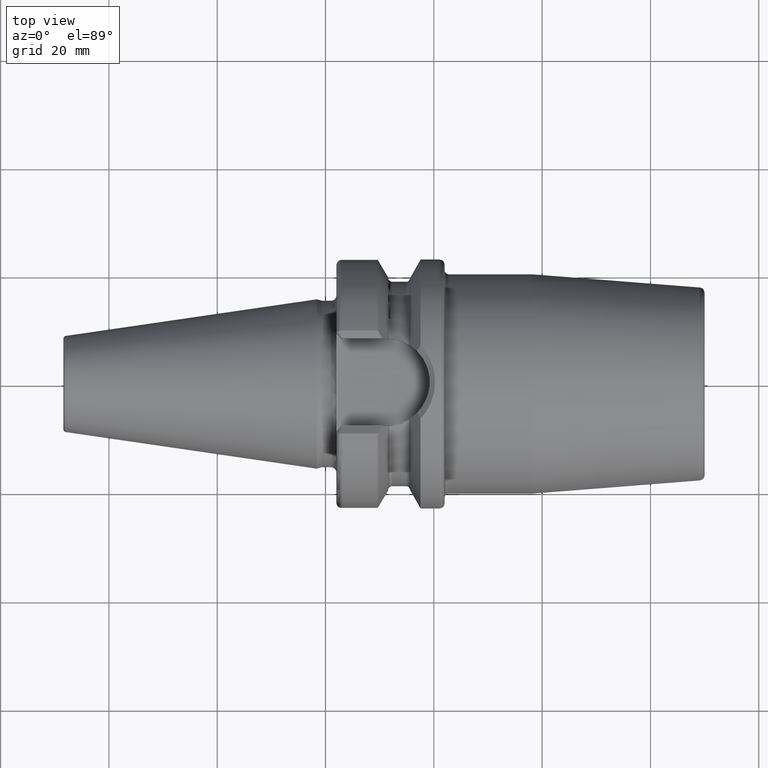
[diagram: clean part render]
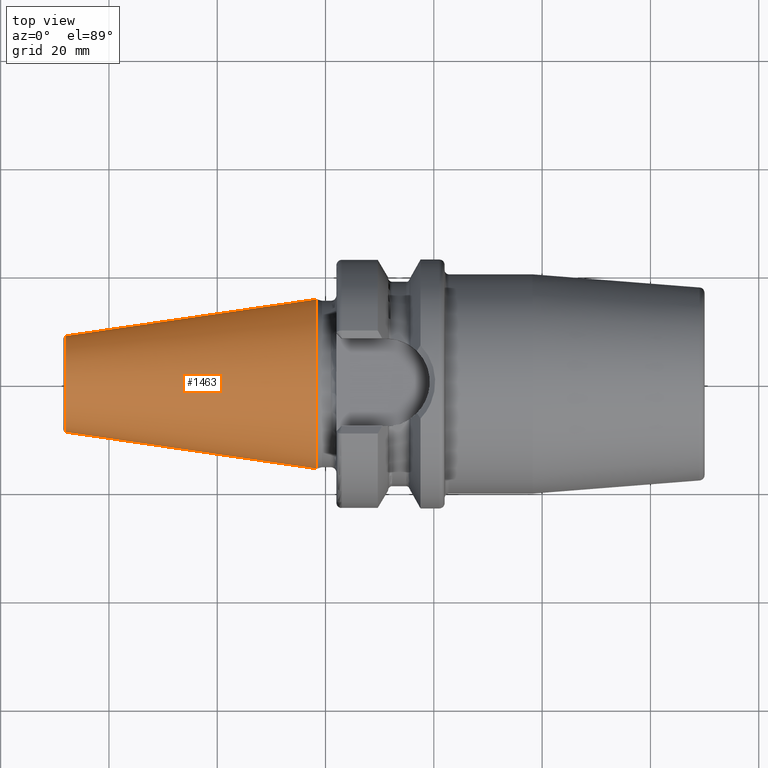
[diagram: same view with one face highlighted and labeled with its STEP entity id]
A machine part, top view. The second image highlights one B-rep face of the part: STEP entity #1463.
In plain terms, the highlighted conical surface has half-angle 8.298 deg.
Its self-contained STEP definition (entity closure, byte-faithful):
#37=CARTESIAN_POINT('',(-4.797215933459E1,0.E0,0.E0));
#38=DIRECTION('',(1.E0,0.E0,0.E0));
#39=DIRECTION('',(0.E0,1.E0,0.E0));
#40=AXIS2_PLACEMENT_3D('',#37,#38,#39);
#42=CARTESIAN_POINT('',(-1.629230650827E0,0.E0,0.E0));
#43=DIRECTION('',(1.E0,0.E0,0.E0));
#44=DIRECTION('',(0.E0,1.E0,0.E0));
#45=AXIS2_PLACEMENT_3D('',#42,#43,#44);
#47=DIRECTION('',(-9.895312636440E-1,-1.443186691705E-1,0.E0));
#48=VECTOR('',#47,4.683321324594E1);
#49=CARTESIAN_POINT('',(-1.629230650827E0,1.563738406209E1,0.E0));
#50=LINE('',#49,#48);
#51=DIRECTION('',(-9.895312636440E-1,1.443186691705E-1,0.E0));
#52=VECTOR('',#51,4.683321324594E1);
#53=CARTESIAN_POINT('',(-1.629230650827E0,-1.563738406209E1,0.E0));
#54=LINE('',#53,#52);
#1156=CARTESIAN_POINT('',(-4.797215933459E1,8.878477053461E0,0.E0));
#1158=VERTEX_POINT('',#1156);
#1160=CARTESIAN_POINT('',(-4.797215933459E1,-8.878477053461E0,0.E0));
#1162=VERTEX_POINT('',#1160);
#1371=CARTESIAN_POINT('',(-1.629230650827E0,1.563738406209E1,0.E0));
#1372=VERTEX_POINT('',#1371);
#1373=CARTESIAN_POINT('',(-1.629230650827E0,-1.563738406209E1,0.E0));
#1374=VERTEX_POINT('',#1373);
#1449=CARTESIAN_POINT('',(-2.480069499271E1,0.E0,0.E0));
#1450=DIRECTION('',(1.E0,0.E0,0.E0));
#1451=DIRECTION('',(0.E0,-1.E0,0.E0));
#1452=AXIS2_PLACEMENT_3D('',#1449,#1450,#1451);
#1453=CONICAL_SURFACE('',#1452,1.225793055778E1,8.297826828206E0);
#1455=ORIENTED_EDGE('',*,*,#1454,.F.);
#1457=ORIENTED_EDGE('',*,*,#1456,.T.);
#1459=ORIENTED_EDGE('',*,*,#1458,.T.);
#1460=ORIENTED_EDGE('',*,*,#1442,.F.);
#1461=EDGE_LOOP('',(#1455,#1457,#1459,#1460));
#1462=FACE_OUTER_BOUND('',#1461,.F.);
#1463=ADVANCED_FACE('',(#1462),#1453,.T.);
#41=CIRCLE('',#40,8.878477053461E0);
#46=CIRCLE('',#45,1.563738406209E1);
#1442=EDGE_CURVE('',#1158,#1162,#41,.T.);
#1454=EDGE_CURVE('',#1372,#1158,#50,.T.);
#1456=EDGE_CURVE('',#1372,#1374,#46,.T.);
#1458=EDGE_CURVE('',#1374,#1162,#54,.T.);